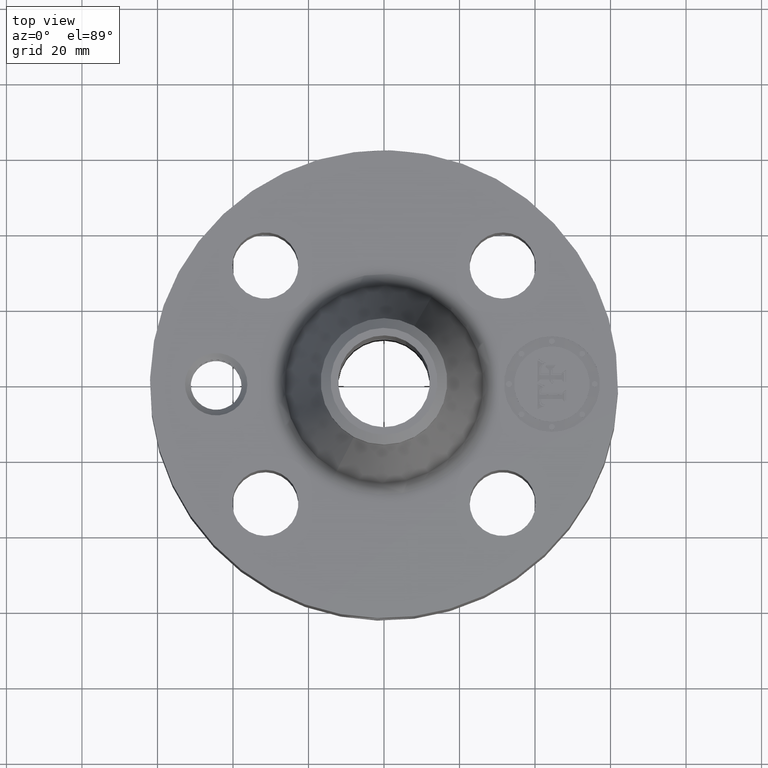
[diagram: clean part render]
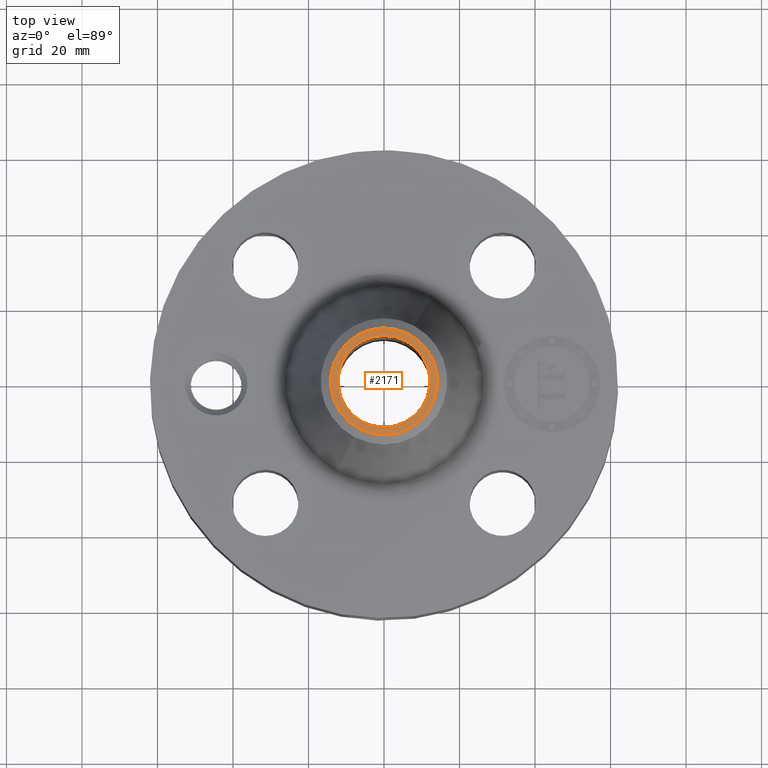
[diagram: same view with one face highlighted and labeled with its STEP entity id]
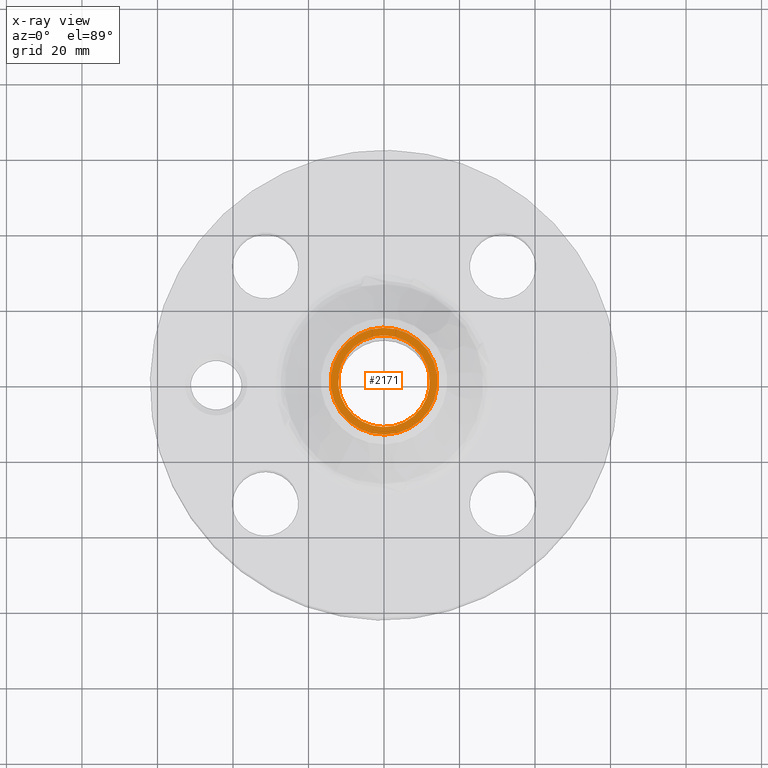
[diagram: x-ray of the same camera — body ghosted, the highlighted face saturated]
A machine part, top view. The second image highlights one B-rep face of the part: STEP entity #2171.
The next image is the same camera in x-ray: the body ghosted, the highlighted face saturated — about 0% of this face is hidden behind the body in this view.
In plain terms, the highlighted planar face has unit normal (0, 0, -1).
Its self-contained STEP definition (entity closure, byte-faithful):
#1121=AXIS2_PLACEMENT_3D('Circle Axis2P3D',#1119,#1120,$) ;
#1189=AXIS2_PLACEMENT_3D('Circle Axis2P3D',#1187,#1188,$) ;
#2147=AXIS2_PLACEMENT_3D('Plane Axis2P3D',#2144,#2145,#2146) ;
#2151=AXIS2_PLACEMENT_3D('Circle Axis2P3D',#2149,#2150,$) ;
#2160=AXIS2_PLACEMENT_3D('Circle Axis2P3D',#2158,#2159,$) ;
#1119=CARTESIAN_POINT('Axis2P3D Location',(0.,0.,3.31000000001)) ;
#1123=CARTESIAN_POINT('Vertex',(0.229405120223,0.419923255866,3.31000000001)) ;
#1125=CARTESIAN_POINT('Vertex',(-0.229405120223,-0.419923255866,3.31000000001)) ;
#1187=CARTESIAN_POINT('Axis2P3D Location',(0.,0.,3.31000000001)) ;
#2144=CARTESIAN_POINT('Axis2P3D Location',(0.,0.660000000003,3.31000000001)) ;
#2149=CARTESIAN_POINT('Axis2P3D Location',(0.,0.,3.31000000001)) ;
#2153=CARTESIAN_POINT('Vertex',(0.267155162633,-0.489024244991,3.31000000001)) ;
#2155=CARTESIAN_POINT('Vertex',(-0.267155162633,0.489024244991,3.31000000001)) ;
#2158=CARTESIAN_POINT('Axis2P3D Location',(0.,0.,3.31000000001)) ;
#1120=DIRECTION('Axis2P3D Direction',(0.,0.,-0.0393700787402)) ;
#1188=DIRECTION('Axis2P3D Direction',(0.,0.,-0.0393700787402)) ;
#2145=DIRECTION('Axis2P3D Direction',(0.,0.,-0.0393700787402)) ;
#2146=DIRECTION('Axis2P3D XDirection',(0.0393700787402,0.,0.)) ;
#2150=DIRECTION('Axis2P3D Direction',(0.,0.,-0.0393700787402)) ;
#2159=DIRECTION('Axis2P3D Direction',(0.,0.,-0.0393700787402)) ;
#2164=ORIENTED_EDGE('',*,*,#2157,.T.) ;
#2165=ORIENTED_EDGE('',*,*,#2162,.T.) ;
#2168=ORIENTED_EDGE('',*,*,#1191,.T.) ;
#2169=ORIENTED_EDGE('',*,*,#1127,.T.) ;
#2170=FACE_BOUND('',#2167,.T.) ;
#2171=ADVANCED_FACE('PartBody',(#2166,#2170),#2148,.F.) ;
#1122=CIRCLE('generated circle',#1121,0.478500000002) ;
#1190=CIRCLE('generated circle',#1189,0.478500000002) ;
#2152=CIRCLE('generated circle',#2151,0.557240157482) ;
#2161=CIRCLE('generated circle',#2160,0.557240157482) ;
#1127=EDGE_CURVE('',#1124,#1126,#1122,.T.) ;
#1191=EDGE_CURVE('',#1126,#1124,#1190,.T.) ;
#2157=EDGE_CURVE('',#2154,#2156,#2152,.F.) ;
#2162=EDGE_CURVE('',#2156,#2154,#2161,.F.) ;
#2163=EDGE_LOOP('',(#2164,#2165)) ;
#2167=EDGE_LOOP('',(#2168,#2169)) ;
#2166=FACE_OUTER_BOUND('',#2163,.T.) ;
#2148=PLANE('',#2147) ;
#1124=VERTEX_POINT('',#1123) ;
#1126=VERTEX_POINT('',#1125) ;
#2154=VERTEX_POINT('',#2153) ;
#2156=VERTEX_POINT('',#2155) ;